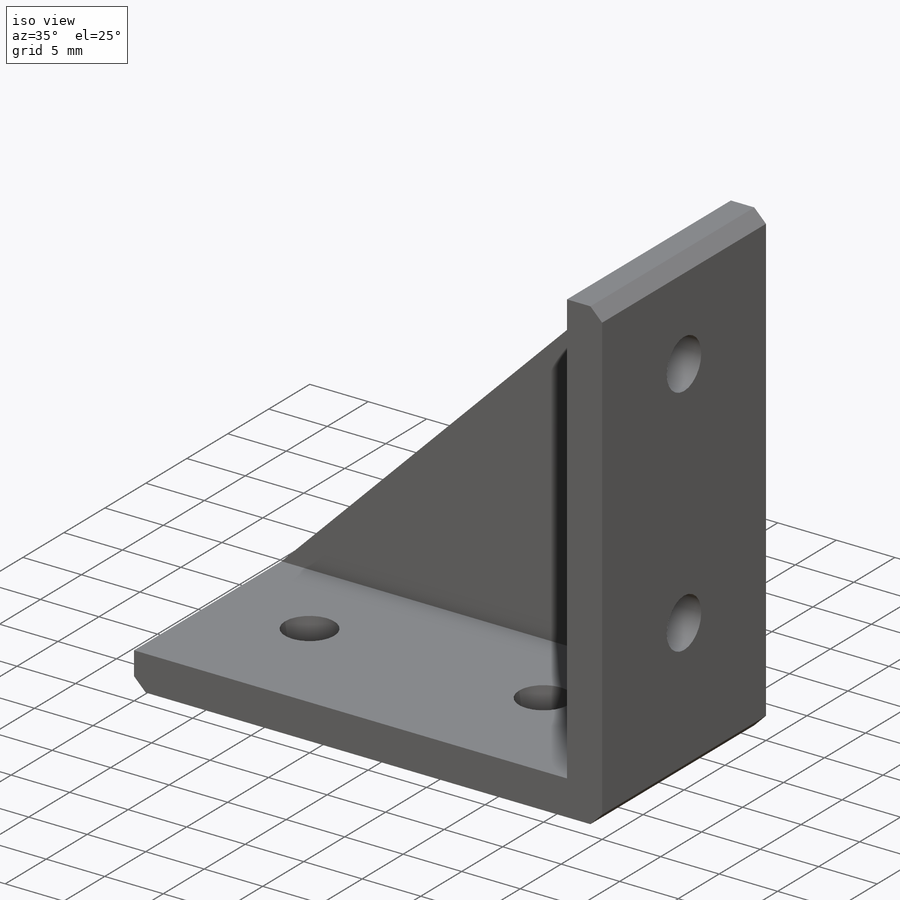
[diagram: iso view]
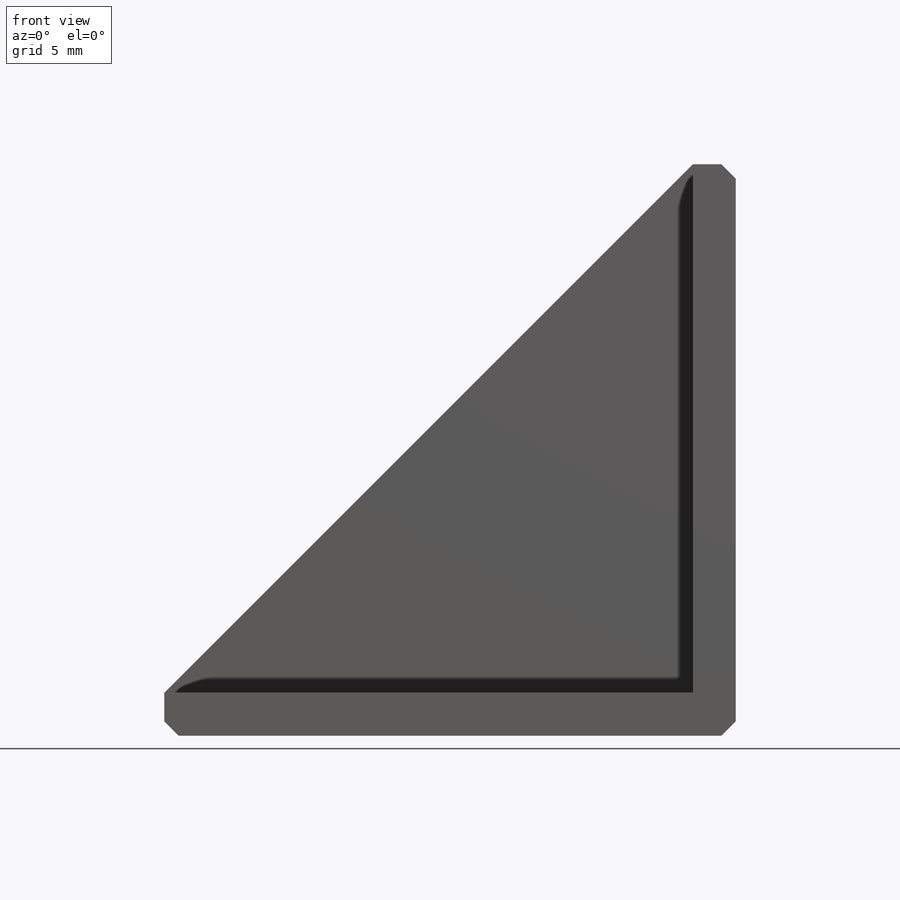
[diagram: front view]
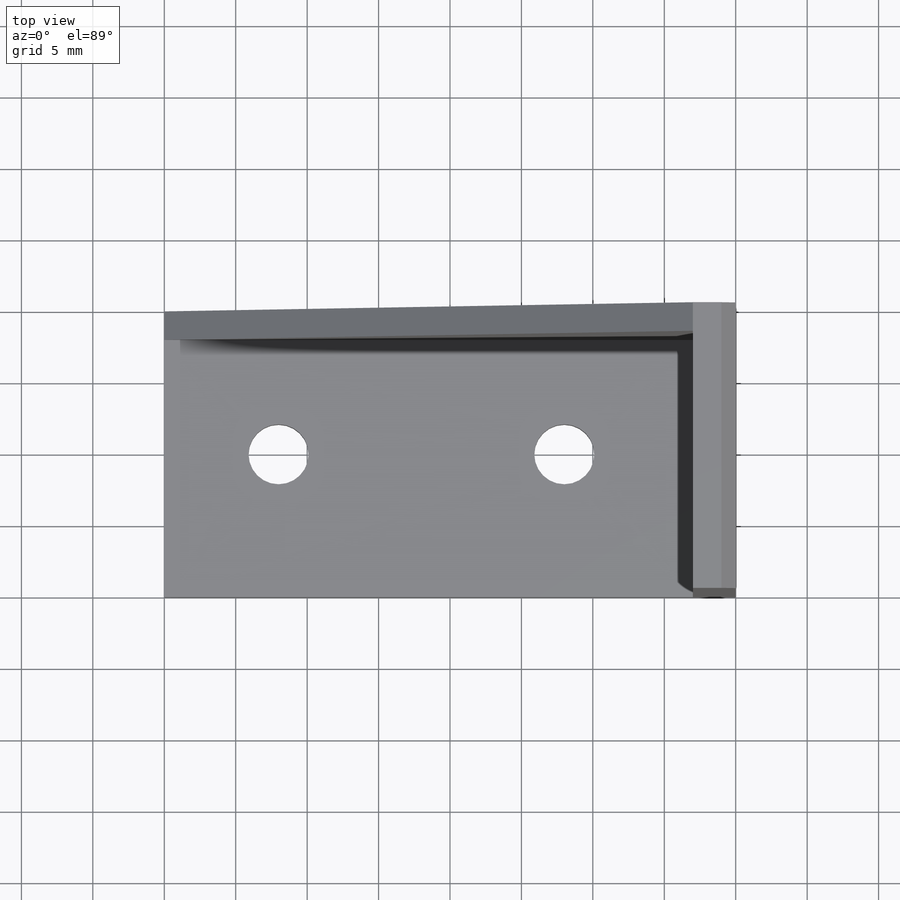
[diagram: top view]
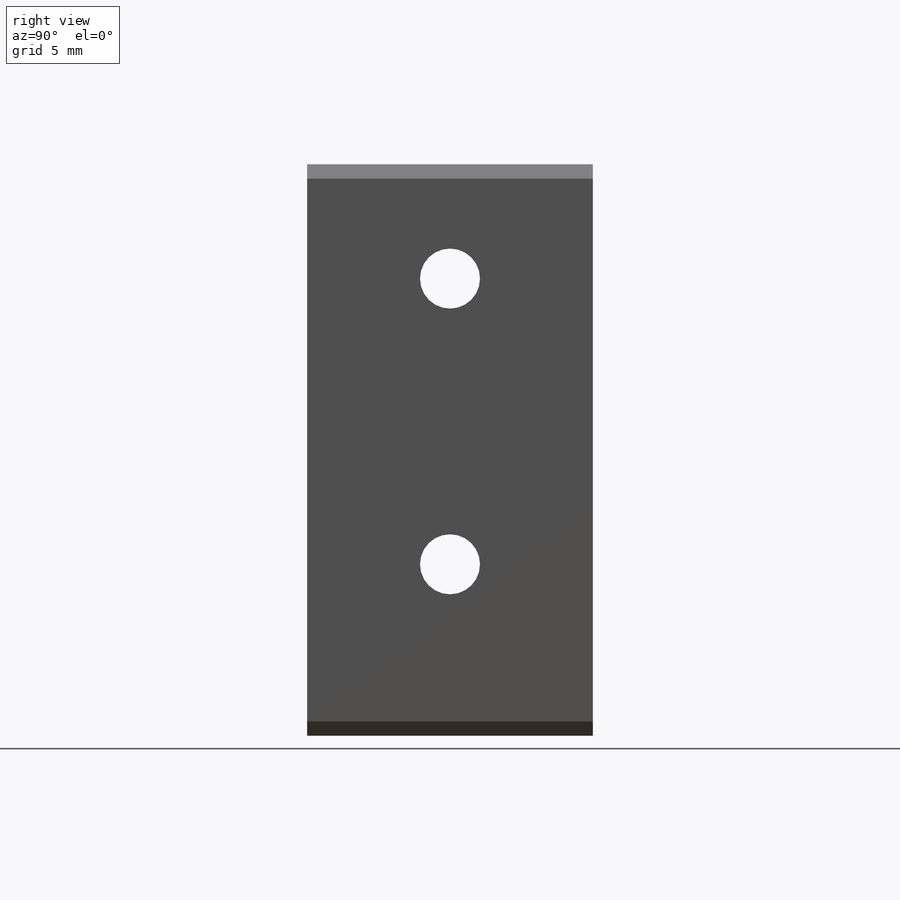
[diagram: right view]
SOLIDWORKS PART (.sldprt)
format: sldprt  version: not decoded by parser v0  size: 177,152 bytes
history: native  units: mm
features: sketch x5, cut_extrude x4, plane x3, material x1, extrude x1, chamfer x1 (+8 scaffold rows collapsed)
feature tree (23):
  scaffold x8  (default folders/planes/origin — collapsed)
  material  "Matériau <non spécifié>"
  plane  "Plan de face"
  plane  "Plan de dessus"
  plane  "Plan de droite"
  sketch  "Esquisse1"  dims[D1=40.0mm D2=40.0mm]
  extrude  "Boss.-Extru.1"  Depth=20mm
  sketch  "Esquisse2"  dims[D1=3.0mm D2=3.0mm]
  cut_extrude  "Enlèv. mat.-Extru.1"  Depth=18mm
  sketch  "Esquisse3"
  cut_extrude  "Enlèv. mat.-Extru.2"  [1 undecoded]
  chamfer  "Chanfrein1"  Distance=1mm Angle=45deg
  sketch  "Esquisse4"  dims[D1=4.2mm D2=4.2mm D3=20.0mm D4=8.0mm D5=10.0mm D6=10.0mm]
  cut_extrude  "Enlèv. mat.-Extru.3"  [1 undecoded]
  sketch  "Esquisse5"  dims[c1.D1=4.2mm c1.D2=4.2mm c1.D3=20.0mm c1.D4=8.0mm c1.D5=~12.71522mm c2.D5=90.0deg c3.D5=10.0mm c3.D6=10.0mm]
  cut_extrude  "Enlèv. mat.-Extru.4"  [1 undecoded]
decode coverage: 7 of 11 modeling features carry decoded parameters
note: ~ marks probable driven/reference dimensions
note: 3 parameter values undecoded
summary: no parameter record found for 3 features
note: suppression state not decoded; provenance and decode notes live in map.json
